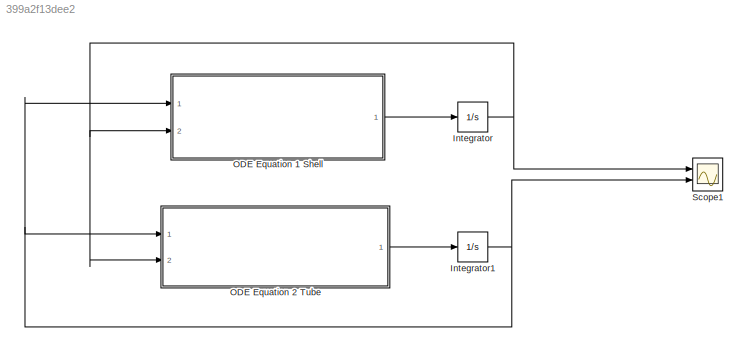
MODEL slx_399a2f13dee2
KIND model
CONFIG AbsTol = auto
CONFIG EnableMultiTasking = off
CONFIG FixedStep = auto
CONFIG MaxStep = auto
CONFIG MinStep = auto
CONFIG RelTol = 1e-3
CONFIG SampleTimeConstraint = Unconstrained
CONFIG Solver = VariableStepAuto
CONFIG SolverName = VariableStepAuto
CONFIG StartTime = 0.0
CONFIG StopTime = 10.0
BLOCK [Integrator] Integrator
  InitialCondition = 300
  Ports = [1, 1]
BLOCK [Integrator] Integrator1
  InitialCondition = 370
  Ports = [1, 1]
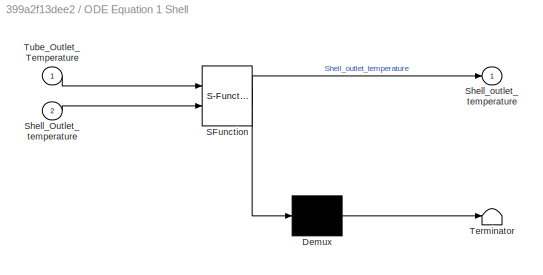
BLOCK [SubSystem] ODE Equation 1 Shell
  ErrorFcn = Stateflow.Translate.translate
  PermitHierarchicalResolution = ExplicitOnly
  Ports = [2, 1]
  RequestExecContextInheritance = off
  SFBlockType = MATLAB Function
  TreatAsAtomicUnit = on
BLOCK [Demux] ODE Equation 1 Shell/ Demux 
  Outputs = 1
  Ports = [1, 1]
BLOCK [S-Function] ODE Equation 1 Shell/ SFunction 
  EnableBusSupport = on
  FunctionName = sf_sfun
  PortCounts = [2 2]
  Ports = [2, 2]
  SFcnIsStateOwnerBlock = off
  SFunctionDeploymentMode = off
  Tag = Stateflow S-Function model_simulink 2
BLOCK [Terminator] ODE Equation 1 Shell/ Terminator 
BLOCK [Inport] ODE Equation 1 Shell/Shell_Outlet_temperature
  IconDisplay = Port number
  Port = 2
BLOCK [Outport] ODE Equation 1 Shell/Shell_outlet_temperature
  IconDisplay = Port number
BLOCK [Inport] ODE Equation 1 Shell/Tube_Outlet_Temperature
  IconDisplay = Port number
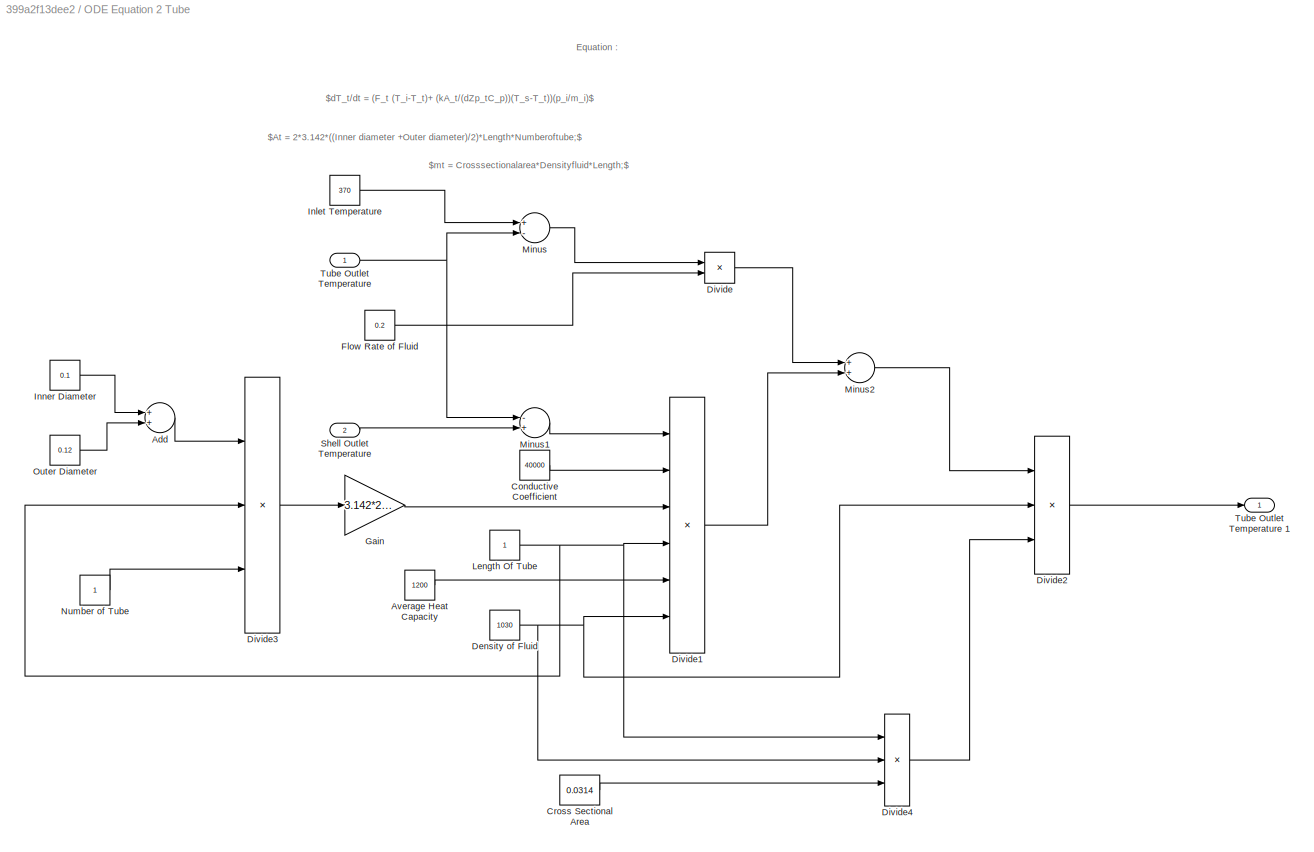
BLOCK [SubSystem] ODE Equation 2 Tube
  Ports = [2, 1]
  RequestExecContextInheritance = off
  TreatAsAtomicUnit = on
BLOCK [Sum] ODE Equation 2 Tube/Add
  InputSameDT = off
  OutDataTypeStr = Inherit: Inherit via internal rule
  Ports = [2, 1]
  SaturateOnIntegerOverflow = off
BLOCK [Constant] ODE Equation 2 Tube/Average Heat Capacity
  Value = 1200
BLOCK [Constant] ODE Equation 2 Tube/Conductive Coefficient
  Value = 40000
BLOCK [Constant] ODE Equation 2 Tube/Cross Sectional Area
  Value = 0.0314
BLOCK [Constant] ODE Equation 2 Tube/Density of Fluid
  SampleTime = -1
  Value = 1030
  VectorParams1D = off
BLOCK [Product] ODE Equation 2 Tube/Divide
  InputSameDT = off
  Inputs = **
  OutDataTypeStr = Inherit: Inherit via internal rule
  Ports = [2, 1]
  RndMeth = Floor
  SaturateOnIntegerOverflow = off
BLOCK [Product] ODE Equation 2 Tube/Divide1
  InputSameDT = off
  Inputs = ***///
  OutDataTypeStr = Inherit: Inherit via internal rule
  Ports = [6, 1]
  RndMeth = Floor
  SaturateOnIntegerOverflow = off
BLOCK [Product] ODE Equation 2 Tube/Divide2
  InputSameDT = off
  Inputs = **/
  OutDataTypeStr = Inherit: Inherit via internal rule
  Ports = [3, 1]
  RndMeth = Floor
  SaturateOnIntegerOverflow = off
BLOCK [Product] ODE Equation 2 Tube/Divide3
  InputSameDT = off
  Inputs = ***
  OutDataTypeStr = Inherit: Inherit via internal rule
  Ports = [3, 1]
  RndMeth = Floor
  SaturateOnIntegerOverflow = off
BLOCK [Product] ODE Equation 2 Tube/Divide4
  InputSameDT = off
  Inputs = ***
  OutDataTypeStr = Inherit: Inherit via internal rule
  Ports = [3, 1]
  RndMeth = Floor
  SaturateOnIntegerOverflow = off
BLOCK [Constant] ODE Equation 2 Tube/Flow Rate of Fluid
  Value = 0.2
BLOCK [Gain] ODE Equation 2 Tube/Gain
  Gain = 3.142*2/2
  OutDataTypeStr = Inherit: Inherit via internal rule
  ParamDataTypeStr = Inherit: Inherit via internal rule
  SaturateOnIntegerOverflow = off
BLOCK [Constant] ODE Equation 2 Tube/Inlet Temperature 
  Value = 370
BLOCK [Constant] ODE Equation 2 Tube/Inner Diameter
  Value = 0.1
BLOCK [Constant] ODE Equation 2 Tube/Length Of Tube
BLOCK [Sum] ODE Equation 2 Tube/Minus
  InputSameDT = off
  Inputs = +-
  OutDataTypeStr = Inherit: Inherit via internal rule
  Ports = [2, 1]
  SaturateOnIntegerOverflow = off
BLOCK [Sum] ODE Equation 2 Tube/Minus1
  InputSameDT = off
  Inputs = -+
  OutDataTypeStr = Inherit: Inherit via internal rule
  Ports = [2, 1]
  SaturateOnIntegerOverflow = off
BLOCK [Sum] ODE Equation 2 Tube/Minus2
  InputSameDT = off
  OutDataTypeStr = Inherit: Inherit via internal rule
  Ports = [2, 1]
  SaturateOnIntegerOverflow = off
BLOCK [Constant] ODE Equation 2 Tube/Number of Tube
BLOCK [Constant] ODE Equation 2 Tube/Outer Diameter
  Value = 0.12
BLOCK [Inport] ODE Equation 2 Tube/Shell Outlet Temperature
  IconDisplay = Port number
  Port = 2
BLOCK [Inport] ODE Equation 2 Tube/Tube Outlet Temperature
  IconDisplay = Port number
BLOCK [Outport] ODE Equation 2 Tube/Tube Outlet Temperature 1
  IconDisplay = Port number
BLOCK [Scope] Scope1
  Floating = off
  NumInputPorts = 2
  Ports = [2]
  ScopeSpecificationString = Simulink.scopes.TimeScopeBlockCfg('CurrentConfiguration', extmgr.ConfigurationSet(extmgr.Configuration('Core','General UI',true),extmgr.Configuration('Core','Source UI',true),extmgr.Configuration('Sources','WiredSimulink',true,'DataLoggingVariableName','ScopeData1'),extmgr.Configuration('Visuals','Time Domain',true,'SerializedDisplays',{struct('MinYLimReal','291.25','MaxYLimReal','378.75','YLabelR...<+1773ch>
ANNOTATION ODE Equation 2 Tube: Equation :
ANNOTATION ODE Equation 2 Tube: $At = 2*3.142*((Inner diameter +Outer diameter)/2)*Length*Numberoftube;$
ANNOTATION ODE Equation 2 Tube: $mt = Crosssectionalarea*Densityfluid*Length;$
ANNOTATION ODE Equation 2 Tube: $dT_t/dt = (F_t (T_i-T_t)+ (kA_t/(dZp_tC_p))(T_s-T_t))(p_i/m_i)$
NET Integrator1:1 -> ODE Equation 1 Shell:1, ODE Equation 2 Tube:1, Scope1:2
NET Integrator:1 -> ODE Equation 1 Shell:2, ODE Equation 2 Tube:2, Scope1:1
LINE ODE Equation 1 Shell:1 -> Integrator:1
LINE ODE Equation 2 Tube/Add:1 -> ODE Equation 2 Tube/Divide3:1
LINE ODE Equation 2 Tube/Average Heat Capacity:1 -> ODE Equation 2 Tube/Divide1:5
LINE ODE Equation 2 Tube/Conductive Coefficient:1 -> ODE Equation 2 Tube/Divide1:2
LINE ODE Equation 2 Tube/Cross Sectional Area:1 -> ODE Equation 2 Tube/Divide4:3
NET ODE Equation 2 Tube/Density of Fluid:1 -> ODE Equation 2 Tube/Divide1:6, ODE Equation 2 Tube/Divide2:2, ODE Equation 2 Tube/Divide4:2
LINE ODE Equation 2 Tube/Divide1:1 -> ODE Equation 2 Tube/Minus2:2
LINE ODE Equation 2 Tube/Divide2:1 -> ODE Equation 2 Tube/Tube Outlet Temperature 1:1
LINE ODE Equation 2 Tube/Divide3:1 -> ODE Equation 2 Tube/Gain:1
LINE ODE Equation 2 Tube/Divide4:1 -> ODE Equation 2 Tube/Divide2:3
LINE ODE Equation 2 Tube/Divide:1 -> ODE Equation 2 Tube/Minus2:1
LINE ODE Equation 2 Tube/Flow Rate of Fluid:1 -> ODE Equation 2 Tube/Divide:2
LINE ODE Equation 2 Tube/Gain:1 -> ODE Equation 2 Tube/Divide1:3
LINE ODE Equation 2 Tube/Inlet Temperature :1 -> ODE Equation 2 Tube/Minus:1
LINE ODE Equation 2 Tube/Inner Diameter:1 -> ODE Equation 2 Tube/Add:1
NET ODE Equation 2 Tube/Length Of Tube:1 -> ODE Equation 2 Tube/Divide1:4, ODE Equation 2 Tube/Divide3:2, ODE Equation 2 Tube/Divide4:1
LINE ODE Equation 2 Tube/Minus1:1 -> ODE Equation 2 Tube/Divide1:1
LINE ODE Equation 2 Tube/Minus2:1 -> ODE Equation 2 Tube/Divide2:1
LINE ODE Equation 2 Tube/Minus:1 -> ODE Equation 2 Tube/Divide:1
LINE ODE Equation 2 Tube/Number of Tube:1 -> ODE Equation 2 Tube/Divide3:3
LINE ODE Equation 2 Tube/Outer Diameter:1 -> ODE Equation 2 Tube/Add:2
LINE ODE Equation 2 Tube/Shell Outlet Temperature:1 -> ODE Equation 2 Tube/Minus1:2
NET ODE Equation 2 Tube/Tube Outlet Temperature:1 -> ODE Equation 2 Tube/Minus1:1, ODE Equation 2 Tube/Minus:2
LINE ODE Equation 2 Tube:1 -> Integrator1:1
note: NET lines group one-source signal fan-out (src -> all destinations, sorted); 1:1 wires keep LINE
CHART ODE Equation 1 Shell states=1 transitions=1
  STATE_LABEL 'eML_blk_kernel()'
  STATE_LABEL 'SCRIPT:\nfunction Shell_outlet_temperature = fcn(Tube_Outlet_Temperature,Shell_Outlet_temperature)\n\n% Constant\nT_ambient = 30+273.15;\nInner_diameter_tube = 0.1;\nOuter_diameter_tube = 0.12;\nLength_tube = 1;\nNumber_tube = 1;\nInner_diameter_shell = 0.2;\nOuter_diameter_shell = 0.22;\nConductive_heattransfer_tube_shell = 40000;\nconvective_heattransfer_shell_ambient = 500;\nCross_sectional_area_shell = 0.0...<+828ch>'
